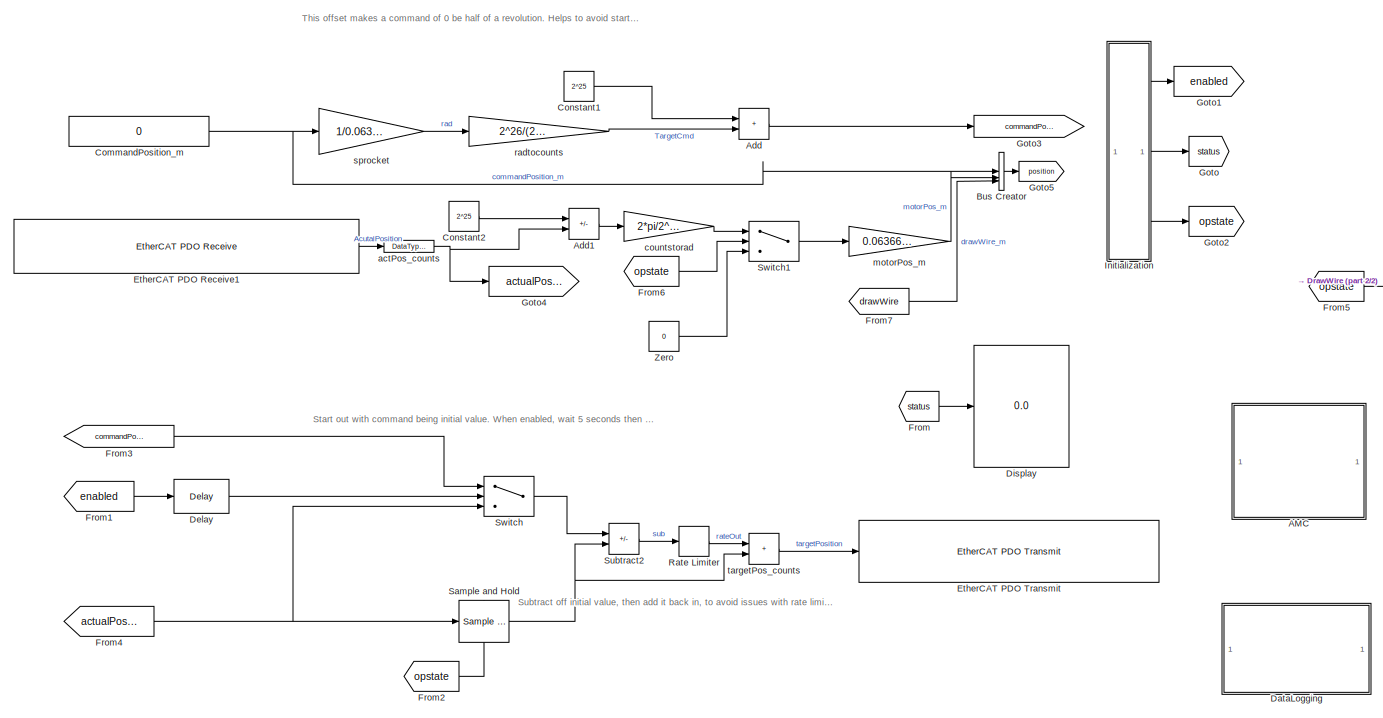
[diagram: root canvas - part 1/2, most of the canvas]
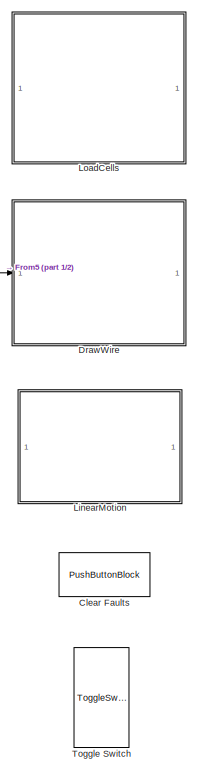
[diagram: root canvas - part 2/2, right side, full height]
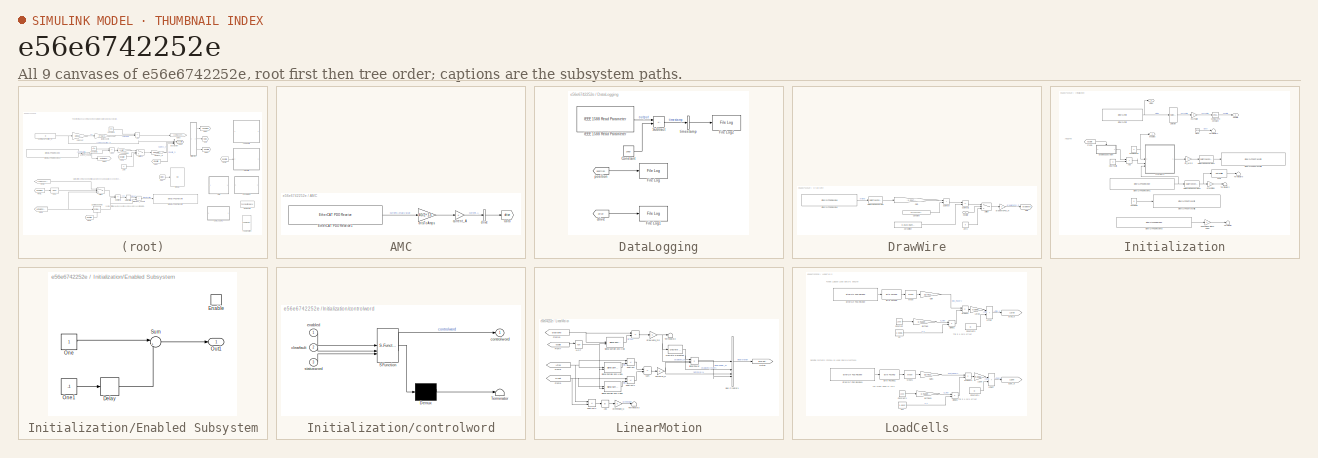
[diagram: thumbnail index - all 9 canvases of the model, root first then tree order]
MODEL slx_e56e6742252e
KIND model
CONFIG AbsTol = auto
CONFIG EnableMultiTasking = off
CONFIG FixedStep = Ts
CONFIG MaxStep = auto
CONFIG MinStep = auto
CONFIG RelTol = 1e-3
CONFIG SampleTimeConstraint = Unconstrained
CONFIG SolverName = FixedStepAuto
CONFIG StartTime = 0.0
CONFIG StopTime = inf
WORKSPACE source: MATLAB code (in-file)
WORKSPACE tgName = 'performance4'
BLOCK [SubSystem] AMC
BLOCK [Reference] AMC/EtherCAT PDO Receive1  REF=slrealtimeethercatlib/EtherCAT PDO Receive
  Priority = 2
  SourceBlock = slrealtimeethercatlib/EtherCAT PDO Receive
  SourceType = ethercat_pdo_receive
BLOCK [Goto] AMC/Goto
  GotoTag = drive
  TagVisibility = global
BLOCK [Gain] AMC/cntsToAmps
  Gain = 40/2^13
  OutDataTypeStr = double
BLOCK [Gain] AMC/current_A
  OutDataTypeStr = double
BLOCK [BusCreator] AMC/drive
  DisplayOption = bar
  InheritFromInputs = on
  Inputs = 1
BLOCK [Sum] Add
  IconShape = rectangular
BLOCK [Sum] Add1
  IconShape = rectangular
  Inputs = -+
BLOCK [BusCreator] Bus Creator
  DisplayOption = bar
  InheritFromInputs = on
  Inputs = 3
  NameLocation = right
BLOCK [PushButtonBlock] Clear Faults
  ButtonText = Clear Faults
  IconOffColor = [0.0, 1.0, 0.0]
  IconOnColor = [0.0, 0.39215686274509803, 0.0]
  OffValue = 0.000000
BLOCK [Constant] CommandPosition_m
  OutDataTypeStr = double
  Value = 0
BLOCK [Constant] Constant1
  OutDataTypeStr = int32
  Value = 2^25
BLOCK [Constant] Constant2
  OutDataTypeStr = double
  Value = 2^25
BLOCK [SubSystem] DataLogging
BLOCK [Constant] DataLogging/Constant
  OutDataTypeStr = double
  Value = 37e9
BLOCK [Reference] DataLogging/File Log  REF=slrealtimeloglib/File Log
  SourceBlock = slrealtimeloglib/File Log
  SourceType = slrealtimeloggingblock
BLOCK [Reference] DataLogging/File Log1  REF=slrealtimeloglib/File Log
  SourceBlock = slrealtimeloglib/File Log
  SourceType = slrealtimeloggingblock
BLOCK [Reference] DataLogging/File Log2  REF=slrealtimeloglib/File Log
  SourceBlock = slrealtimeloglib/File Log
  SourceType = slrealtimeloggingblock
BLOCK [Reference] DataLogging/IEEE 1588 Read Parameter  REF=slrealtimeptplib/IEEE 1588
Read Parameter
  Priority = 1
  SourceBlock = slrealtimeptplib/IEEE 1588\nRead Parameter
  SourceType = IEEE_1588_read_param
BLOCK [Sum] DataLogging/Subtract
  IconShape = rectangular
  Inputs = +-
  OutDataTypeStr = double
BLOCK [From] DataLogging/drive
  GotoTag = drive
  TagVisibility = global
BLOCK [From] DataLogging/position
  GotoTag = position
  TagVisibility = global
BLOCK [BusCreator] DataLogging/timestamp
  DisplayOption = bar
  InheritFromInputs = on
  Inputs = timestamp
BLOCK [Delay] Delay
  DelayLength = 5*1000
  InputPortMap = u0
BLOCK [Display] Display
  Decimation = 1
BLOCK [SubSystem] DrawWire
BLOCK [Constant] DrawWire/Constant
  Value = 4.071504459855158e+02
BLOCK [DataTypeConversion] DrawWire/Data Type Conversion
  OutDataTypeStr = double
  RndMeth = Floor
  SaturateOnIntegerOverflow = off
BLOCK [Reference] DrawWire/EtherCAT PDO Receive  REF=slrealtimeethercatlib/EtherCAT PDO Receive
  Priority = 2
  SourceBlock = slrealtimeethercatlib/EtherCAT PDO Receive
  SourceType = ethercat_pdo_receive
BLOCK [Gain] DrawWire/Gain
  Gain = -1.221706459368690e-05
  OutDataTypeStr = double
BLOCK [Goto] DrawWire/Goto
  GotoTag = drawWire
  TagVisibility = global
BLOCK [Sum] DrawWire/Subtract
  IconShape = rectangular
BLOCK [Sum] DrawWire/Subtract1
  IconShape = rectangular
  Inputs = +-
BLOCK [Switch] DrawWire/Switch
  Criteria = u2 > Threshold
  InputSameDT = off
  SaturateOnIntegerOverflow = off
BLOCK [Constant] DrawWire/Zero
  OutDataTypeStr = Inherit: Inherit via back propagation
  Value = 0
BLOCK [Gain] DrawWire/drawWirePos_m
  Gain = -1
BLOCK [Inport] DrawWire/opstate
BLOCK [Constant] DrawWire/zero offset
  Value = 0.25+0.0504975
BLOCK [Reference] EtherCAT PDO Receive1  REF=slrealtimeethercatlib/EtherCAT PDO Receive
  Priority = 2
  SourceBlock = slrealtimeethercatlib/EtherCAT PDO Receive
  SourceType = ethercat_pdo_receive
BLOCK [Reference] EtherCAT PDO Transmit  REF=slrealtimeethercatlib/EtherCAT PDO Transmit
  Priority = 3
  SourceBlock = slrealtimeethercatlib/EtherCAT PDO Transmit
  SourceType = ethercat_pdo_send
BLOCK [From] From
  GotoTag = status
BLOCK [From] From1
  GotoTag = enabled
BLOCK [From] From2
  GotoTag = opstate
  TagVisibility = global
BLOCK [From] From3
  GotoTag = commandPos_cnts
BLOCK [From] From4
  GotoTag = actualPos_cnts
BLOCK [From] From5
  GotoTag = opstate
  TagVisibility = global
BLOCK [From] From6
  GotoTag = opstate
  TagVisibility = global
BLOCK [From] From7
  GotoTag = drawWire
  TagVisibility = global
BLOCK [Goto] Goto
  GotoTag = status
BLOCK [Goto] Goto1
  GotoTag = enabled
BLOCK [Goto] Goto2
  GotoTag = opstate
  TagVisibility = global
BLOCK [Goto] Goto3
  GotoTag = commandPos_cnts
BLOCK [Goto] Goto4
  GotoTag = actualPos_cnts
BLOCK [Goto] Goto5
  GotoTag = position
  TagVisibility = global
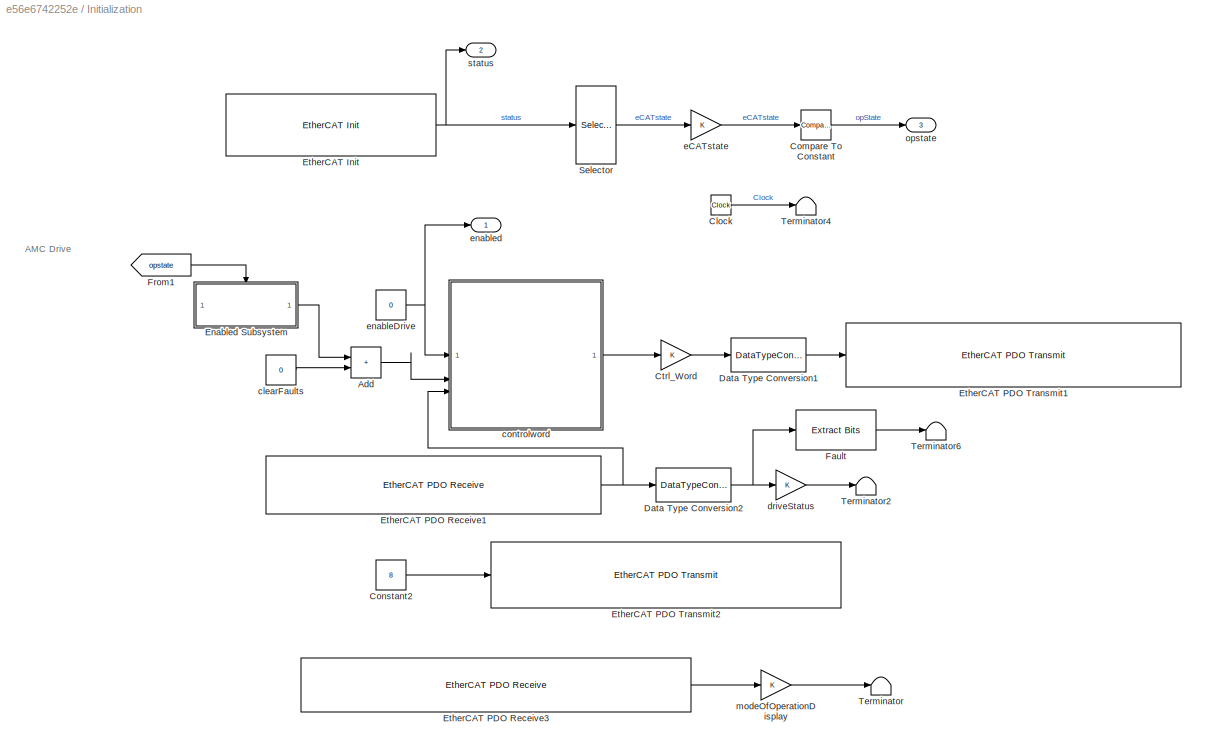
BLOCK [SubSystem] Initialization
BLOCK [Sum] Initialization/Add
  IconShape = rectangular
BLOCK [Clock] Initialization/Clock
  Decimation = 1
BLOCK [Reference] Initialization/Compare To Constant  REF=simulink/Logic and Bit
Operations/Compare
To Constant
  SourceBlock = simulink/Logic and Bit\nOperations/Compare\nTo Constant
  SourceType = Compare To Constant
BLOCK [Constant] Initialization/Constant2
  OutDataTypeStr = uint16
  Value = 8
BLOCK [Gain] Initialization/Ctrl_Word
BLOCK [DataTypeConversion] Initialization/Data Type Conversion1
  OutDataTypeStr = uint16
  RndMeth = Floor
  SaturateOnIntegerOverflow = off
BLOCK [DataTypeConversion] Initialization/Data Type Conversion2
  OutDataTypeStr = double
  RndMeth = Floor
  SaturateOnIntegerOverflow = off
BLOCK [SubSystem] Initialization/Enabled Subsystem
  TreatAsAtomicUnit = on
BLOCK [Delay] Initialization/Enabled Subsystem/Delay
  DelayLength = 1/Ts
  InputPortMap = u0
BLOCK [EnablePort] Initialization/Enabled Subsystem/Enable
BLOCK [Constant] Initialization/Enabled Subsystem/One
  OutDataTypeStr = Inherit: Inherit via back propagation
BLOCK [Constant] Initialization/Enabled Subsystem/One1
  OutDataTypeStr = Inherit: Inherit via back propagation
  Value = -1
BLOCK [Outport] Initialization/Enabled Subsystem/Out1
BLOCK [Sum] Initialization/Enabled Subsystem/Sum
  Inputs = |++
BLOCK [Reference] Initialization/EtherCAT Init  REF=slrealtimeethercatlib/EtherCAT Init
  Priority = 0
  SourceBlock = slrealtimeethercatlib/EtherCAT Init
  SourceType = ethercatinit
BLOCK [Reference] Initialization/EtherCAT PDO Receive1  REF=slrealtimeethercatlib/EtherCAT PDO Receive
  Priority = 2
  SourceBlock = slrealtimeethercatlib/EtherCAT PDO Receive
  SourceType = ethercat_pdo_receive
BLOCK [Reference] Initialization/EtherCAT PDO Receive3  REF=slrealtimeethercatlib/EtherCAT PDO Receive
  Priority = 2
  SourceBlock = slrealtimeethercatlib/EtherCAT PDO Receive
  SourceType = ethercat_pdo_receive
BLOCK [Reference] Initialization/EtherCAT PDO Transmit1  REF=slrealtimeethercatlib/EtherCAT PDO Transmit
  Priority = 3
  SourceBlock = slrealtimeethercatlib/EtherCAT PDO Transmit
  SourceType = ethercat_pdo_send
BLOCK [Reference] Initialization/EtherCAT PDO Transmit2  REF=slrealtimeethercatlib/EtherCAT PDO Transmit
  Priority = 3
  SourceBlock = slrealtimeethercatlib/EtherCAT PDO Transmit
  SourceType = ethercat_pdo_send
BLOCK [Reference] Initialization/Fault  REF=simulink/Logic and Bit
Operations/Extract Bits
  SourceBlock = simulink/Logic and Bit\nOperations/Extract Bits
  SourceType = Extract Bits
BLOCK [From] Initialization/From1
  GotoTag = opstate
  TagVisibility = global
BLOCK [Selector] Initialization/Selector
  IndexOptions = Index vector (dialog)
  Indices = 2
  InputPortWidth = 6
  OutputSizes = 1
BLOCK [Terminator] Initialization/Terminator
BLOCK [Terminator] Initialization/Terminator2
BLOCK [Terminator] Initialization/Terminator4
BLOCK [Terminator] Initialization/Terminator6
BLOCK [Constant] Initialization/clearFaults
  Value = 0
BLOCK [SubSystem] Initialization/controlword
  ErrorFcn = Stateflow.Translate.translate
  PermitHierarchicalResolution = ExplicitOnly
  SFBlockType = MATLAB Function
  TreatAsAtomicUnit = on
BLOCK [Demux] Initialization/controlword/ Demux 
  Outputs = 1
BLOCK [S-Function] Initialization/controlword/ SFunction 
  EnableBusSupport = off
  FunctionName = sf_sfun
  PortCounts = [3 2]
  SFcnIsStateOwnerBlock = off
  SFunctionDeploymentMode = off
  Tag = Stateflow S-Function 2
BLOCK [Terminator] Initialization/controlword/ Terminator 
BLOCK [Inport] Initialization/controlword/clearfault
  Port = 2
BLOCK [Outport] Initialization/controlword/controlword
BLOCK [Inport] Initialization/controlword/enabled
BLOCK [Inport] Initialization/controlword/statusword
  Port = 3
BLOCK [Gain] Initialization/driveStatus
BLOCK [Gain] Initialization/eCATstate
  OutDataTypeStr = double
BLOCK [Constant] Initialization/enableDrive
  Value = 0
BLOCK [Outport] Initialization/enabled
BLOCK [Gain] Initialization/modeOfOperationDisplay
  OutDataTypeStr = double
BLOCK [Outport] Initialization/opstate
  Port = 3
BLOCK [Outport] Initialization/status
  Port = 2
BLOCK [SubSystem] LinearMotion
BLOCK [Sum] LinearMotion/ 
  IconShape = rectangular
  Inputs = +-
BLOCK [Abs] LinearMotion/Abs
  SaturateOnIntegerOverflow = off
BLOCK [BusCreator] LinearMotion/Bus Creator1
  DisplayOption = bar
  InheritFromInputs = on
  Inputs = drawWire_m,drawWire_mpers,netForce_N,linearPower_W
BLOCK [Reference] LinearMotion/Discrete Derivative  REF=simulink/Discrete/Discrete Derivative
  SourceBlock = simulink/Discrete/Discrete Derivative
  SourceType = Discrete Derivative
BLOCK [From] LinearMotion/From10
  GotoTag = drawWire
  TagVisibility = global
BLOCK [From] LinearMotion/From7
  GotoTag = opstate
  TagVisibility = global
BLOCK [From] LinearMotion/From8
  GotoTag = LCtop
  TagVisibility = global
BLOCK [From] LinearMotion/From9
  GotoTag = LCbot
  TagVisibility = global
BLOCK [Goto] LinearMotion/Goto5
  GotoTag = linearMotion
  TagVisibility = global
BLOCK [Logic] LinearMotion/NOT
  AllPortsSameDT = off
  IconShape = distinctive
  Operator = NOT
  OutDataTypeStr = boolean
BLOCK [Reference] LinearMotion/Signal Sample and Hold  REF=eeGeneralControl/Signal Sample and Hold
  LibrarySourceBlock = ee_sl_lib/General Control/Signal Sample and Hold
  SourceBlock = eeGeneralControl/Signal Sample and Hold
  SourceType = Signal Sample-and-Hold
BLOCK [Reference] LinearMotion/Signal Sample and Hold1  REF=eeGeneralControl/Signal Sample and Hold
  LibrarySourceBlock = ee_sl_lib/General Control/Signal Sample and Hold
  SourceBlock = eeGeneralControl/Signal Sample and Hold
  SourceType = Signal Sample-and-Hold
BLOCK [Reference] LinearMotion/Signal Sample and Hold2  REF=eeGeneralControl/Signal Sample and Hold
  LibrarySourceBlock = ee_sl_lib/General Control/Signal Sample and Hold
  SourceBlock = eeGeneralControl/Signal Sample and Hold
  SourceType = Signal Sample-and-Hold
BLOCK [Sum] LinearMotion/Subtract
  IconShape = rectangular
  Inputs = +-
BLOCK [Sum] LinearMotion/Subtract1
  IconShape = rectangular
  Inputs = +-
BLOCK [Sum] LinearMotion/Subtract4
  IconShape = rectangular
  Inputs = +-
BLOCK [Terminator] LinearMotion/Terminator2
BLOCK [Terminator] LinearMotion/Terminator3
BLOCK [Gain] LinearMotion/drawWire_m2
BLOCK [Product] LinearMotion/linearPower
BLOCK [Gain] LinearMotion/netForce_N
BLOCK [Gain] LinearMotion/preTension_N
BLOCK [Sum] LinearMotion/sum
  IconShape = rectangular
  Inputs = -+
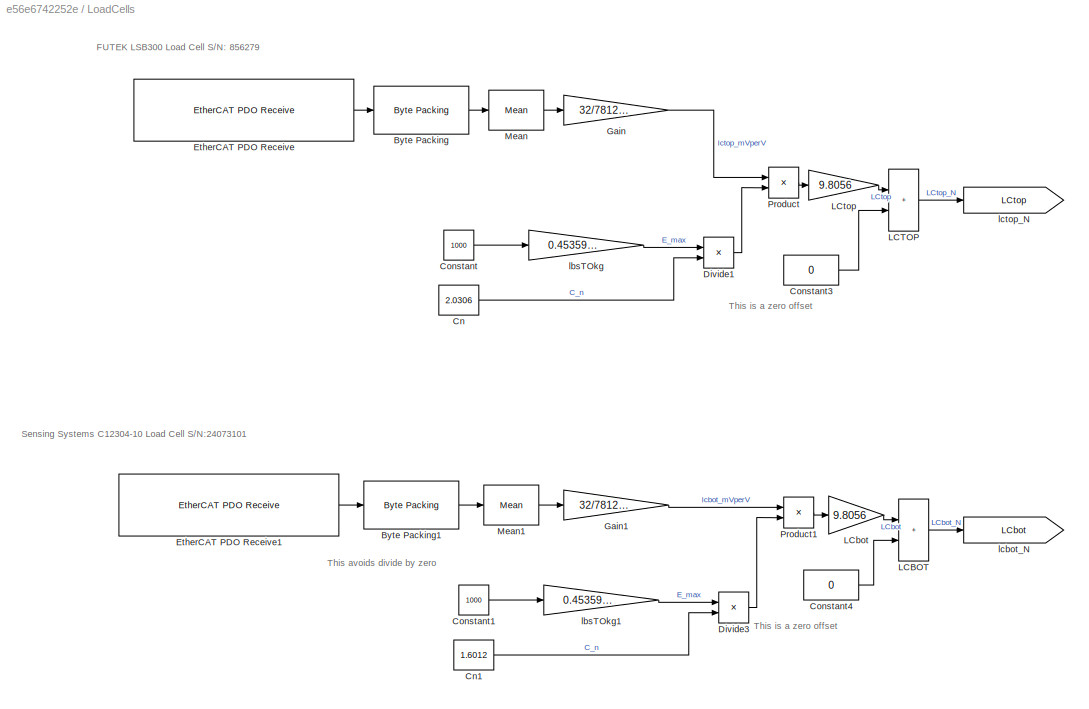
BLOCK [SubSystem] LoadCells
BLOCK [Reference] LoadCells/Byte Packing  REF=slrealtimeutilitieslib/Byte Packing
  SourceBlock = slrealtimeutilitieslib/Byte Packing
  SourceType = slrealtimebytepacking
BLOCK [Reference] LoadCells/Byte Packing1  REF=slrealtimeutilitieslib/Byte Packing
  SourceBlock = slrealtimeutilitieslib/Byte Packing
  SourceType = slrealtimebytepacking
BLOCK [Constant] LoadCells/Cn
  Value = 2.0306
BLOCK [Constant] LoadCells/Cn1
  Value = 1.6012
BLOCK [Constant] LoadCells/Constant
  Value = 1000
BLOCK [Constant] LoadCells/Constant1
  Value = 1000
BLOCK [Constant] LoadCells/Constant3
  Value = 0
BLOCK [Constant] LoadCells/Constant4
  Value = 0
BLOCK [Product] LoadCells/Divide1
  Inputs = */
BLOCK [Product] LoadCells/Divide3
  Inputs = */
BLOCK [Reference] LoadCells/EtherCAT PDO Receive  REF=slrealtimeethercatlib/EtherCAT PDO Receive
  Priority = 2
  SourceBlock = slrealtimeethercatlib/EtherCAT PDO Receive
  SourceType = ethercat_pdo_receive
BLOCK [Reference] LoadCells/EtherCAT PDO Receive1  REF=slrealtimeethercatlib/EtherCAT PDO Receive
  Priority = 2
  SourceBlock = slrealtimeethercatlib/EtherCAT PDO Receive
  SourceType = ethercat_pdo_receive
BLOCK [Gain] LoadCells/Gain
  Gain = 32/7812500
BLOCK [Gain] LoadCells/Gain1
  Gain = 32/7812500
BLOCK [Sum] LoadCells/LCBOT
  IconShape = rectangular
BLOCK [Sum] LoadCells/LCTOP
  IconShape = rectangular
BLOCK [Gain] LoadCells/LCbot
  Gain = 9.8056
BLOCK [Gain] LoadCells/LCtop
  Gain = 9.8056
BLOCK [Reference] LoadCells/Mean  REF=dspstat3/Mean
  SourceBlock = dspstat3/Mean
  SourceType = Mean
  UserDataPersistent = on
BLOCK [Reference] LoadCells/Mean1  REF=dspstat3/Mean
  SourceBlock = dspstat3/Mean
  SourceType = Mean
  UserDataPersistent = on
BLOCK [Product] LoadCells/Product
BLOCK [Product] LoadCells/Product1
BLOCK [Gain] LoadCells/lbsTOkg
  Gain = 0.45359237
BLOCK [Gain] LoadCells/lbsTOkg1
  Gain = 0.45359237
BLOCK [Goto] LoadCells/lcbot_N
  GotoTag = LCbot
  TagVisibility = global
BLOCK [Goto] LoadCells/lctop_N
  GotoTag = LCtop
  TagVisibility = global
BLOCK [RateLimiter] Rate Limiter
  FallingSlewLimit = -1e6
  RisingSlewLimit = 1e6
  SampleTimeMode = inherited
BLOCK [Reference] Sample and Hold  REF=dspsigops/Sample
and Hold
  LibrarySourceBlock = dsphdlsupportsigops/Sample\nand Hold
  NameLocation = top
  SourceBlock = dspsigops/Sample\nand Hold
  SourceType = Sample and Hold
BLOCK [Sum] Subtract2
  IconShape = rectangular
  Inputs = +-
BLOCK [Switch] Switch
  Criteria = u2 > Threshold
  InputSameDT = off
  SaturateOnIntegerOverflow = off
BLOCK [Switch] Switch1
  Criteria = u2 > Threshold
  InputSameDT = off
  SaturateOnIntegerOverflow = off
BLOCK [ToggleSwitchBlock] Toggle Switch
BLOCK [Constant] Zero
  OutDataTypeStr = Inherit: Inherit via back propagation
  Value = 0
BLOCK [DataTypeConversion] actPos_counts
  OutDataTypeStr = double
  RndMeth = Floor
  SaturateOnIntegerOverflow = off
BLOCK [Gain] countstorad
  Gain = 2*pi/2^26
  OutDataTypeStr = double
BLOCK [Gain] motorPos_m
  Gain = 0.0636651
BLOCK [Gain] radtocounts
  Gain = 2^26/(2*pi)
  OutDataTypeStr = int32
BLOCK [Gain] sprocket
  Gain = 1/0.0636651
BLOCK [Sum] targetPos_counts
  IconShape = rectangular
  OutDataTypeStr = int32
ANNOTATION (root): Start out with command being initial value. When enabled, wait 5 seconds then use commanded value.
ANNOTATION (root): Subtract off initial value, then add it back in, to avoid issues with rate limiter initial value being set to zero.
ANNOTATION (root): This offset makes a command of 0 be half of a revolution. Helps to avoid starting up in unanticipated state.
ANNOTATION Initialization: AMC Drive
ANNOTATION LoadCells: FUTEK LSB300 Load Cell S/N: 856279
ANNOTATION LoadCells: Sensing Systems C12304-10 Load Cell S/N:24073101
ANNOTATION LoadCells: This avoids divide by zero
ANNOTATION LoadCells: This is a zero offset
LINE AMC/EtherCAT PDO Receive1:1 -> AMC/cntsToAmps:1
LINE AMC/cntsToAmps:1 -> AMC/current_A:1
LINE AMC/current_A:1 -> AMC/drive:1
LINE AMC/drive:1 -> AMC/Goto:1
LINE Add1:1 -> countstorad:1
LINE Add:1 -> Goto3:1
LINE Bus Creator:1 -> Goto5:1
NET CommandPosition_m:1 -> Bus Creator:1, sprocket:1
LINE Constant1:1 -> Add:1
LINE Constant2:1 -> Add1:1
LINE DataLogging/Constant:1 -> DataLogging/Subtract:2
LINE DataLogging/IEEE 1588 Read Parameter:1 -> DataLogging/Subtract:1
LINE DataLogging/Subtract:1 -> DataLogging/timestamp:1
LINE DataLogging/drive:1 -> DataLogging/File Log1:1
LINE DataLogging/position:1 -> DataLogging/File Log:1
LINE DataLogging/timestamp:1 -> DataLogging/File Log2:1
LINE Delay:1 -> Switch:2
LINE DrawWire/Constant:1 -> DrawWire/Subtract:2
LINE DrawWire/Data Type Conversion:1 -> DrawWire/Gain:1
LINE DrawWire/EtherCAT PDO Receive:1 -> DrawWire/Data Type Conversion:1
LINE DrawWire/Gain:1 -> DrawWire/Subtract:1
LINE DrawWire/Subtract1:1 -> DrawWire/Switch:1
LINE DrawWire/Subtract:1 -> DrawWire/Subtract1:1
LINE DrawWire/Switch:1 -> DrawWire/drawWirePos_m:1
LINE DrawWire/Zero:1 -> DrawWire/Switch:3
LINE DrawWire/drawWirePos_m:1 -> DrawWire/Goto:1
LINE DrawWire/opstate:1 -> DrawWire/Switch:2
LINE DrawWire/zero offset:1 -> DrawWire/Subtract1:2
LINE EtherCAT PDO Receive1:1 -> actPos_counts:1
LINE From1:1 -> Delay:1
LINE From2:1 -> Sample and Hold:trigger
LINE From3:1 -> Switch:1
NET From4:1 -> Sample and Hold:1, Switch:3
LINE From5:1 -> DrawWire:1
LINE From6:1 -> Switch1:2
LINE From7:1 -> Bus Creator:3
LINE From:1 -> Display:1
LINE Initialization/Add:1 -> Initialization/controlword:2
LINE Initialization/Clock:1 -> Initialization/Terminator4:1
LINE Initialization/Compare To Constant:1 -> Initialization/opstate:1
LINE Initialization/Constant2:1 -> Initialization/EtherCAT PDO Transmit2:1
LINE Initialization/Ctrl_Word:1 -> Initialization/Data Type Conversion1:1
LINE Initialization/Data Type Conversion1:1 -> Initialization/EtherCAT PDO Transmit1:1
NET Initialization/Data Type Conversion2:1 -> Initialization/Fault:1, Initialization/driveStatus:1
LINE Initialization/Enabled Subsystem/Delay:1 -> Initialization/Enabled Subsystem/Sum:2
LINE Initialization/Enabled Subsystem/One1:1 -> Initialization/Enabled Subsystem/Delay:1
LINE Initialization/Enabled Subsystem/One:1 -> Initialization/Enabled Subsystem/Sum:1
LINE Initialization/Enabled Subsystem/Sum:1 -> Initialization/Enabled Subsystem/Out1:1
LINE Initialization/Enabled Subsystem:1 -> Initialization/Add:1
NET Initialization/EtherCAT Init:1 -> Initialization/Selector:1, Initialization/status:1
NET Initialization/EtherCAT PDO Receive1:1 -> Initialization/Data Type Conversion2:1, Initialization/controlword:3
LINE Initialization/EtherCAT PDO Receive3:1 -> Initialization/modeOfOperationDisplay:1
LINE Initialization/Fault:1 -> Initialization/Terminator6:1
LINE Initialization/From1:1 -> Initialization/Enabled Subsystem:enable
LINE Initialization/Selector:1 -> Initialization/eCATstate:1
LINE Initialization/clearFaults:1 -> Initialization/Add:2
LINE Initialization/controlword:1 -> Initialization/Ctrl_Word:1
LINE Initialization/driveStatus:1 -> Initialization/Terminator2:1
LINE Initialization/eCATstate:1 -> Initialization/Compare To Constant:1
NET Initialization/enableDrive:1 -> Initialization/controlword:1, Initialization/enabled:1
LINE Initialization/modeOfOperationDisplay:1 -> Initialization/Terminator:1
LINE Initialization:1 -> Goto1:1
LINE Initialization:2 -> Goto:1
LINE Initialization:3 -> Goto2:1
LINE LinearMotion/ :1 -> LinearMotion/drawWire_m2:1
LINE LinearMotion/Abs:1 -> LinearMotion/preTension_N:1
LINE LinearMotion/Bus Creator1:1 -> LinearMotion/Goto5:1
NET LinearMotion/Discrete Derivative:1 -> LinearMotion/Bus Creator1:2, LinearMotion/linearPower:1
NET LinearMotion/From10:1 -> LinearMotion/ :1, LinearMotion/Signal Sample and Hold:1
LINE LinearMotion/From7:1 -> LinearMotion/NOT:1
NET LinearMotion/From8:1 -> LinearMotion/Signal Sample and Hold1:1, LinearMotion/Subtract4:1, LinearMotion/Subtract:1
NET LinearMotion/From9:1 -> LinearMotion/Signal Sample and Hold2:1, LinearMotion/Subtract1:1, LinearMotion/Subtract4:2
NET LinearMotion/NOT:1 -> LinearMotion/Signal Sample and Hold1:2, LinearMotion/Signal Sample and Hold2:2, LinearMotion/Signal Sample and Hold:2
LINE LinearMotion/Signal Sample and Hold1:1 -> LinearMotion/Subtract:2
LINE LinearMotion/Signal Sample and Hold2:1 -> LinearMotion/Subtract1:2
LINE LinearMotion/Signal Sample and Hold:1 -> LinearMotion/ :2
LINE LinearMotion/Subtract1:1 -> LinearMotion/sum:2
LINE LinearMotion/Subtract4:1 -> LinearMotion/Abs:1
LINE LinearMotion/Subtract:1 -> LinearMotion/sum:1
NET LinearMotion/drawWire_m2:1 -> LinearMotion/Bus Creator1:1, LinearMotion/Discrete Derivative:1, LinearMotion/Terminator2:1
LINE LinearMotion/linearPower:1 -> LinearMotion/Bus Creator1:4
NET LinearMotion/netForce_N:1 -> LinearMotion/Bus Creator1:3, LinearMotion/linearPower:2
LINE LinearMotion/preTension_N:1 -> LinearMotion/Terminator3:1
LINE LinearMotion/sum:1 -> LinearMotion/netForce_N:1
LINE LoadCells/Byte Packing1:1 -> LoadCells/Mean1:1
LINE LoadCells/Byte Packing:1 -> LoadCells/Mean:1
LINE LoadCells/Cn1:1 -> LoadCells/Divide3:2
LINE LoadCells/Cn:1 -> LoadCells/Divide1:2
LINE LoadCells/Constant1:1 -> LoadCells/lbsTOkg1:1
LINE LoadCells/Constant3:1 -> LoadCells/LCTOP:2
LINE LoadCells/Constant4:1 -> LoadCells/LCBOT:2
LINE LoadCells/Constant:1 -> LoadCells/lbsTOkg:1
LINE LoadCells/Divide1:1 -> LoadCells/Product:2
LINE LoadCells/Divide3:1 -> LoadCells/Product1:2
LINE LoadCells/EtherCAT PDO Receive1:1 -> LoadCells/Byte Packing1:1
LINE LoadCells/EtherCAT PDO Receive:1 -> LoadCells/Byte Packing:1
LINE LoadCells/Gain1:1 -> LoadCells/Product1:1
LINE LoadCells/Gain:1 -> LoadCells/Product:1
LINE LoadCells/LCBOT:1 -> LoadCells/lcbot_N:1
LINE LoadCells/LCTOP:1 -> LoadCells/lctop_N:1
LINE LoadCells/LCbot:1 -> LoadCells/LCBOT:1
LINE LoadCells/LCtop:1 -> LoadCells/LCTOP:1
LINE LoadCells/Mean1:1 -> LoadCells/Gain1:1
LINE LoadCells/Mean:1 -> LoadCells/Gain:1
LINE LoadCells/Product1:1 -> LoadCells/LCbot:1
LINE LoadCells/Product:1 -> LoadCells/LCtop:1
LINE LoadCells/lbsTOkg1:1 -> LoadCells/Divide3:1
LINE LoadCells/lbsTOkg:1 -> LoadCells/Divide1:1
LINE Rate Limiter:1 -> targetPos_counts:1
NET Sample and Hold:1 -> Subtract2:2, targetPos_counts:2
LINE Subtract2:1 -> Rate Limiter:1
LINE Switch1:1 -> motorPos_m:1
LINE Switch:1 -> Subtract2:1
LINE Zero:1 -> Switch1:3
NET actPos_counts:1 -> Add1:2, Goto4:1
LINE countstorad:1 -> Switch1:1
LINE motorPos_m:1 -> Bus Creator:2
LINE radtocounts:1 -> Add:2
LINE sprocket:1 -> radtocounts:1
LINE targetPos_counts:1 -> EtherCAT PDO Transmit:1
note: NET lines group one-source signal fan-out (src -> all destinations, sorted); 1:1 wires keep LINE
CHART Initialization/controlword states=1 transitions=1
  STATE_LABEL 'eML_blk_kernel()'
  STATE_LABEL 'SCRIPT:\nfunction controlword = fcn(enabled, clearfault, statusword)\n\nbitstatus = bitget(statusword,1:16);\n\nif ~clearfault\n    if enabled\n        if bitstatus(1) == 0 % Ready to switch on not ready\n            controlword = 6; % command ready switch on\n        elseif ~bitstatus(2) % switched not yet on\n            controlword = 7; % command switch on\n        elseif ~bitstatus(3) % operation not yet...<+257ch>'
CHART  states=0 transitions=0
